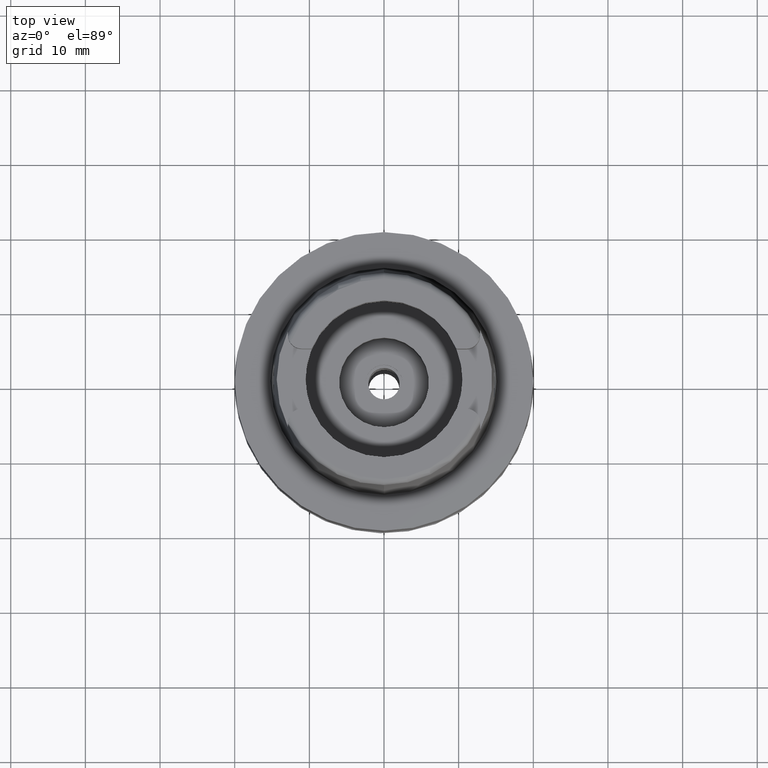
[diagram: clean part render]
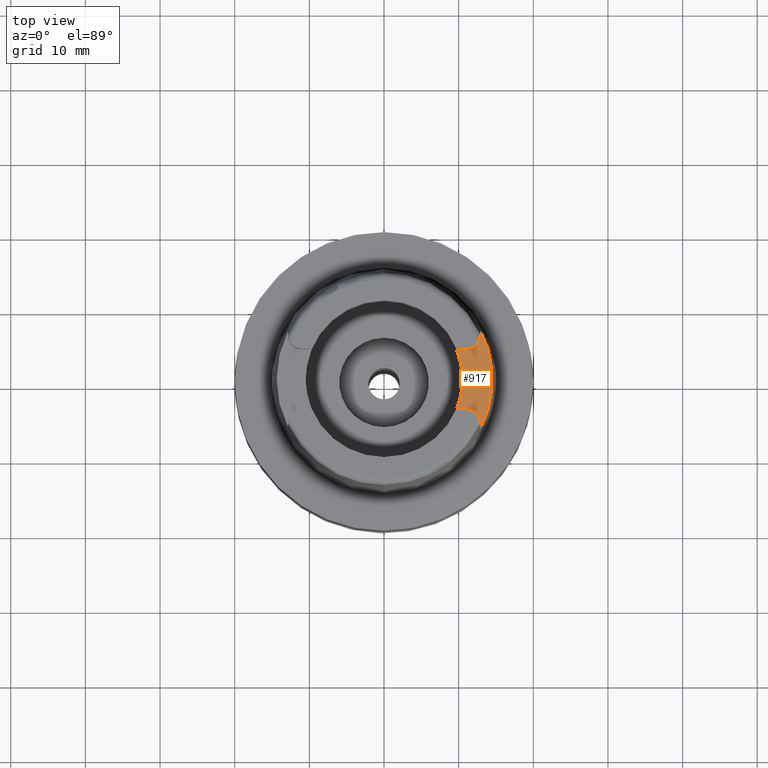
[diagram: same view with one face highlighted and labeled with its STEP entity id]
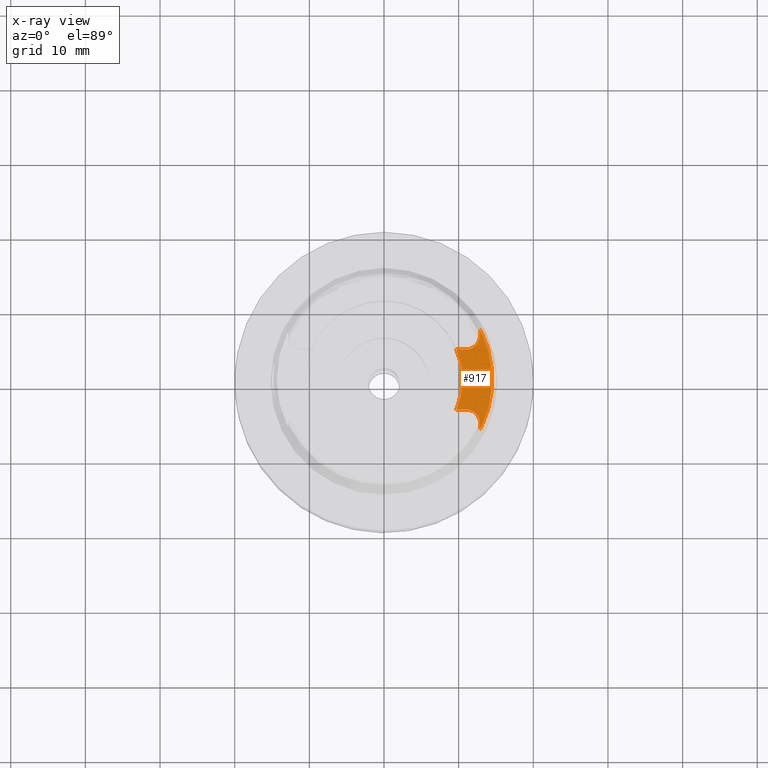
[diagram: x-ray of the same camera — body ghosted, the highlighted face saturated]
A machine part, top view. The second image highlights one B-rep face of the part: STEP entity #917.
The next image is the same camera in x-ray: the body ghosted, the highlighted face saturated — about 0% of this face is hidden behind the body in this view.
In plain terms, the highlighted planar face has unit normal (0, 0, 1).
Its self-contained STEP definition (entity closure, byte-faithful):
#59 = DIRECTION ( 'NONE',  ( 1.000000000000000000, 5.457919872554689482E-13, 0.0000000000000000000 ) ) ;
#99 = CARTESIAN_POINT ( 'NONE',  ( 12.88000000001000167, -6.659963896840999986, 14.00000000000000000 ) ) ;
#110 = CIRCLE ( 'NONE', #439, 1.879999999999999671 ) ;
#130 = DIRECTION ( 'NONE',  ( 0.0000000000000000000, 0.0000000000000000000, -1.000000000000000000 ) ) ;
#208 = VECTOR ( 'NONE', #5000, 1000.000000000000000 ) ;
#296 = LINE ( 'NONE', #1126, #1868 ) ;
#365 = CIRCLE ( 'NONE', #2534, 10.49999999999999822 ) ;
#439 = AXIS2_PLACEMENT_3D ( 'NONE', #3031, #3813, #868 ) ;
#513 = EDGE_CURVE ( 'NONE', #5057, #1808, #1854, .T. ) ;
#524 = ORIENTED_EDGE ( 'NONE', *, *, #2774, .F. ) ;
#557 = DIRECTION ( 'NONE',  ( 0.0000000000000000000, 0.0000000000000000000, 1.000000000000000000 ) ) ;
#565 = CARTESIAN_POINT ( 'NONE',  ( 12.88000000000000078, 5.904999999999999361, 14.00000000000000000 ) ) ;
#641 = DIRECTION ( 'NONE',  ( 1.000000000000000000, 0.0000000000000000000, 0.0000000000000000000 ) ) ;
#707 = AXIS2_PLACEMENT_3D ( 'NONE', #2628, #557, #641 ) ;
#781 = LINE ( 'NONE', #4138, #208 ) ;
#868 = DIRECTION ( 'NONE',  ( 0.0000000000000000000, -1.000000000000000000, 0.0000000000000000000 ) ) ;
#917 = ADVANCED_FACE ( 'NONE', ( #3037 ), #1428, .T. ) ;
#1126 = CARTESIAN_POINT ( 'NONE',  ( 9.697905701747998819, 4.025000000000000355, 14.00000000000000000 ) ) ;
#1258 = VERTEX_POINT ( 'NONE', #1693 ) ;
#1330 = CARTESIAN_POINT ( 'NONE',  ( 9.697905701747998819, 4.025000000000000355, 14.00000000000000000 ) ) ;
#1428 = PLANE ( 'NONE',  #707 ) ;
#1685 = CIRCLE ( 'NONE', #5091, 1.879999999999999671 ) ;
#1693 = CARTESIAN_POINT ( 'NONE',  ( 9.697905701747998819, -4.025000000000000355, 14.00000000000000000 ) ) ;
#1765 = DIRECTION ( 'NONE',  ( 0.9236100668331782559, -0.3833333333332911153, 0.0000000000000000000 ) ) ;
#1766 = ORIENTED_EDGE ( 'NONE', *, *, #4908, .F. ) ;
#1808 = VERTEX_POINT ( 'NONE', #2417 ) ;
#1844 = LINE ( 'NONE', #3521, #4979 ) ;
#1854 = LINE ( 'NONE', #565, #4631 ) ;
#1868 = VECTOR ( 'NONE', #3218, 1000.000000000000000 ) ;
#1872 = CARTESIAN_POINT ( 'NONE',  ( 11.00000000000000000, 4.025000000000000355, 14.00000000000000000 ) ) ;
#1937 = CARTESIAN_POINT ( 'NONE',  ( 12.88000000000000078, 5.904999999999999361, 14.00000000000000000 ) ) ;
#1992 = EDGE_CURVE ( 'NONE', #4087, #1258, #781, .T. ) ;
#1999 = EDGE_CURVE ( 'NONE', #2371, #4087, #1685, .T. ) ;
#2122 = CIRCLE ( 'NONE', #3178, 14.49998341749000730 ) ;
#2371 = VERTEX_POINT ( 'NONE', #3136 ) ;
#2417 = CARTESIAN_POINT ( 'NONE',  ( 12.88000000001000167, 6.659963896840999986, 14.00000000000000000 ) ) ;
#2448 = ORIENTED_EDGE ( 'NONE', *, *, #2509, .F. ) ;
#2509 = EDGE_CURVE ( 'NONE', #4870, #3298, #296, .T. ) ;
#2534 = AXIS2_PLACEMENT_3D ( 'NONE', #3473, #3530, #1765 ) ;
#2628 = CARTESIAN_POINT ( 'NONE',  ( 0.0000000000000000000, 0.0000000000000000000, 14.00000000000000000 ) ) ;
#2655 = CARTESIAN_POINT ( 'NONE',  ( 0.0000000000000000000, 0.0000000000000000000, 14.00000000000000000 ) ) ;
#2774 = EDGE_CURVE ( 'NONE', #1258, #4870, #365, .T. ) ;
#3031 = CARTESIAN_POINT ( 'NONE',  ( 11.00000000000000000, 5.904999999999999361, 14.00000000000000000 ) ) ;
#3037 = FACE_OUTER_BOUND ( 'NONE', #4538, .T. ) ;
#3136 = CARTESIAN_POINT ( 'NONE',  ( 12.88000000000000078, -5.904999999999999361, 14.00000000000000000 ) ) ;
#3178 = AXIS2_PLACEMENT_3D ( 'NONE', #2655, #130, #3438 ) ;
#3218 = DIRECTION ( 'NONE',  ( 1.000000000000000000, -1.637076677275000359E-14, 0.0000000000000000000 ) ) ;
#3244 = EDGE_CURVE ( 'NONE', #1808, #3268, #2122, .T. ) ;
#3268 = VERTEX_POINT ( 'NONE', #99 ) ;
#3298 = VERTEX_POINT ( 'NONE', #1872 ) ;
#3438 = DIRECTION ( 'NONE',  ( 0.8882768779220027167, 0.4593083802296007434, 0.0000000000000000000 ) ) ;
#3473 = CARTESIAN_POINT ( 'NONE',  ( 0.0000000000000000000, 0.0000000000000000000, 14.00000000000000000 ) ) ;
#3490 = ORIENTED_EDGE ( 'NONE', *, *, #1999, .F. ) ;
#3521 = CARTESIAN_POINT ( 'NONE',  ( 12.88000825962999940, -6.659927628489000107, 14.00000000000000000 ) ) ;
#3530 = DIRECTION ( 'NONE',  ( 0.0000000000000000000, 0.0000000000000000000, 1.000000000000000000 ) ) ;
#3546 = ORIENTED_EDGE ( 'NONE', *, *, #4103, .F. ) ;
#3613 = ORIENTED_EDGE ( 'NONE', *, *, #513, .F. ) ;
#3803 = DIRECTION ( 'NONE',  ( 0.0000000000000000000, 0.0000000000000000000, 1.000000000000000000 ) ) ;
#3813 = DIRECTION ( 'NONE',  ( 0.0000000000000000000, 0.0000000000000000000, 1.000000000000000000 ) ) ;
#3923 = CARTESIAN_POINT ( 'NONE',  ( 11.00000000000000000, -4.025000000000000355, 14.00000000000000000 ) ) ;
#3932 = DIRECTION ( 'NONE',  ( -2.427729565223884842E-06, 0.9999999999970530240, 1.505841885547929791E-13 ) ) ;
#4087 = VERTEX_POINT ( 'NONE', #3923 ) ;
#4103 = EDGE_CURVE ( 'NONE', #3268, #2371, #1844, .T. ) ;
#4138 = CARTESIAN_POINT ( 'NONE',  ( 11.00000000000000000, -4.025000000000000355, 14.00000000000000000 ) ) ;
#4214 = CARTESIAN_POINT ( 'NONE',  ( 11.00000000000000000, -5.904999999999999361, 14.00000000000000000 ) ) ;
#4515 = ORIENTED_EDGE ( 'NONE', *, *, #3244, .F. ) ;
#4538 = EDGE_LOOP ( 'NONE', ( #4827, #3490, #3546, #4515, #3613, #1766, #2448, #524 ) ) ;
#4631 = VECTOR ( 'NONE', #3932, 1000.000000000000227 ) ;
#4827 = ORIENTED_EDGE ( 'NONE', *, *, #1992, .F. ) ;
#4870 = VERTEX_POINT ( 'NONE', #1330 ) ;
#4908 = EDGE_CURVE ( 'NONE', #3298, #5057, #110, .T. ) ;
#4979 = VECTOR ( 'NONE', #5181, 1000.000000000000114 ) ;
#5000 = DIRECTION ( 'NONE',  ( -1.000000000000000000, -1.705288205493999919E-14, 0.0000000000000000000 ) ) ;
#5057 = VERTEX_POINT ( 'NONE', #1937 ) ;
#5091 = AXIS2_PLACEMENT_3D ( 'NONE', #4214, #3803, #59 ) ;
#5181 = DIRECTION ( 'NONE',  ( -1.094096263035051506E-05, 0.9999999999401476547, -1.505930282910069536E-13 ) ) ;